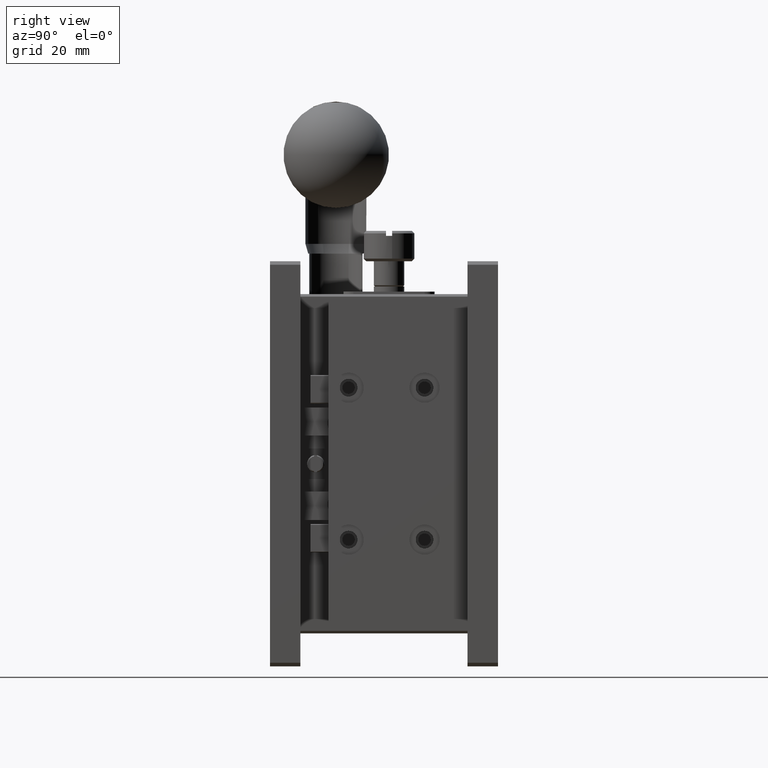
[diagram: clean part render]
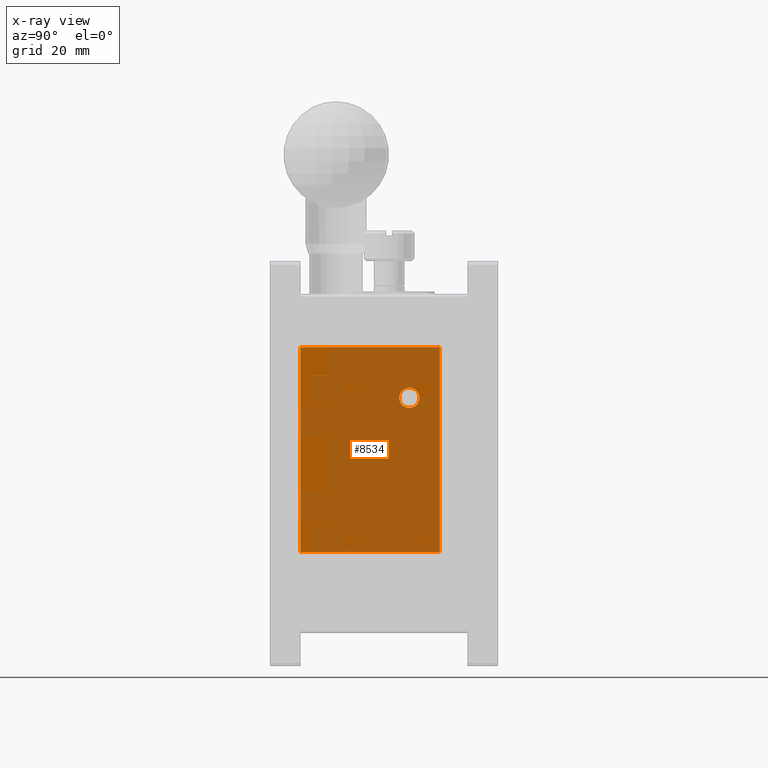
[diagram: x-ray — body ghosted, one internal face saturated and labeled with its STEP entity id]
A machine part, right view, then the same camera in x-ray: the body is ghosted and one INTERNAL B-rep face — a face not visible from any outside direction — is saturated and labeled: STEP entity #8534.
In plain terms, the highlighted planar face has unit normal (-1, 0, 0).
Its self-contained STEP definition (entity closure, byte-faithful):
#122 = CARTESIAN_POINT ( 'NONE',  ( 46.00000000000000000, 27.50000000000000000, -27.00000000000000000 ) ) ;
#123 = CARTESIAN_POINT ( 'NONE',  ( 46.00000000000000000, 27.50000000000000000, -28.99999999999999645 ) ) ;
#200 = EDGE_CURVE ( 'NONE', #9161, #11118, #2078, .T. ) ;
#240 = VECTOR ( 'NONE', #1038, 1000.000000000000000 ) ;
#314 = VECTOR ( 'NONE', #13123, 1000.000000000000000 ) ;
#1038 = DIRECTION ( 'NONE',  ( 0.000000000000000000, 0.000000000000000000, 1.000000000000000000 ) ) ;
#2078 = LINE ( 'NONE', #14340, #240 ) ;
#2473 = CARTESIAN_POINT ( 'NONE',  ( 46.00000000000000000, 5.999999999999998224, -17.00000000000000000 ) ) ;
#2500 = VERTEX_POINT ( 'NONE', #123 ) ;
#2609 = CARTESIAN_POINT ( 'NONE',  ( 46.00000000000000000, 5.999999999999998224, -57.50000000000000000 ) ) ;
#2786 = EDGE_CURVE ( 'NONE', #11118, #7463, #9711, .T. ) ;
#3001 = ORIENTED_EDGE ( 'NONE', *, *, #6015, .T. ) ;
#3093 = AXIS2_PLACEMENT_3D ( 'NONE', #14672, #9909, #4509 ) ;
#3183 = EDGE_LOOP ( 'NONE', ( #5430, #6271, #4338, #7920 ) ) ;
#3788 = CIRCLE ( 'NONE', #10660, 1.999999999999998224 ) ;
#4338 = ORIENTED_EDGE ( 'NONE', *, *, #200, .T. ) ;
#4509 = DIRECTION ( 'NONE',  ( 0.000000000000000000, 0.000000000000000000, 1.000000000000000000 ) ) ;
#5325 = CARTESIAN_POINT ( 'NONE',  ( 46.00000000000000000, 33.50000000000000000, -57.50000000000000000 ) ) ;
#5352 = EDGE_LOOP ( 'NONE', ( #3001 ) ) ;
#5430 = ORIENTED_EDGE ( 'NONE', *, *, #6004, .F. ) ;
#5609 = PLANE ( 'NONE',  #3093 ) ;
#5657 = LINE ( 'NONE', #9291, #13427 ) ;
#6004 = EDGE_CURVE ( 'NONE', #12298, #7463, #7935, .T. ) ;
#6015 = EDGE_CURVE ( 'NONE', #2500, #2500, #3788, .T. ) ;
#6271 = ORIENTED_EDGE ( 'NONE', *, *, #11539, .T. ) ;
#6404 = VECTOR ( 'NONE', #11416, 1000.000000000000000 ) ;
#7463 = VERTEX_POINT ( 'NONE', #9314 ) ;
#7920 = ORIENTED_EDGE ( 'NONE', *, *, #2786, .T. ) ;
#7935 = LINE ( 'NONE', #12456, #6404 ) ;
#8100 = DIRECTION ( 'NONE',  ( -0.000000000000000000, -1.000000000000000000, 0.000000000000000000 ) ) ;
#8534 = ADVANCED_FACE ( 'NONE', ( #10126, #11251 ), #5609, .T. ) ;
#8597 = CARTESIAN_POINT ( 'NONE',  ( 46.00000000000000000, 33.50000000000000000, -17.00000000000000000 ) ) ;
#9161 = VERTEX_POINT ( 'NONE', #2609 ) ;
#9291 = CARTESIAN_POINT ( 'NONE',  ( 46.00000000000000000, 33.50000000000000000, -57.50000000000000000 ) ) ;
#9314 = CARTESIAN_POINT ( 'NONE',  ( 46.00000000000000000, 33.50000000000000000, -17.00000000000000000 ) ) ;
#9711 = LINE ( 'NONE', #8597, #314 ) ;
#9909 = DIRECTION ( 'NONE',  ( -1.000000000000000000, 0.000000000000000000, 0.000000000000000000 ) ) ;
#10126 = FACE_OUTER_BOUND ( 'NONE', #3183, .T. ) ;
#10150 = DIRECTION ( 'NONE',  ( 1.000000000000000000, 0.000000000000000000, 0.000000000000000000 ) ) ;
#10452 = DIRECTION ( 'NONE',  ( 0.000000000000000000, 0.000000000000000000, -1.000000000000000000 ) ) ;
#10660 = AXIS2_PLACEMENT_3D ( 'NONE', #122, #10150, #10452 ) ;
#11118 = VERTEX_POINT ( 'NONE', #2473 ) ;
#11251 = FACE_BOUND ( 'NONE', #5352, .T. ) ;
#11416 = DIRECTION ( 'NONE',  ( 0.000000000000000000, -0.000000000000000000, 1.000000000000000000 ) ) ;
#11539 = EDGE_CURVE ( 'NONE', #12298, #9161, #5657, .T. ) ;
#12298 = VERTEX_POINT ( 'NONE', #5325 ) ;
#12456 = CARTESIAN_POINT ( 'NONE',  ( 46.00000000000000000, 33.50000000000000000, 0.000000000000000000 ) ) ;
#13123 = DIRECTION ( 'NONE',  ( 0.000000000000000000, 1.000000000000000000, -0.000000000000000000 ) ) ;
#13427 = VECTOR ( 'NONE', #8100, 1000.000000000000000 ) ;
#14340 = CARTESIAN_POINT ( 'NONE',  ( 46.00000000000000000, 5.999999999999998224, -17.00000000000000000 ) ) ;
#14672 = CARTESIAN_POINT ( 'NONE',  ( 46.00000000000000000, 33.50000000000000000, -17.00000000000000000 ) ) ;